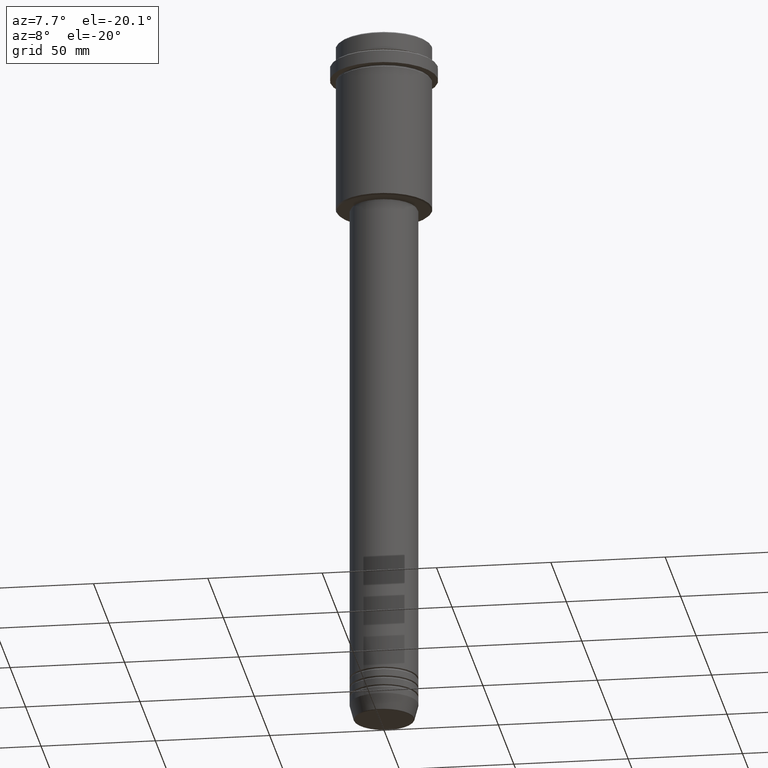
[diagram: clean part render]
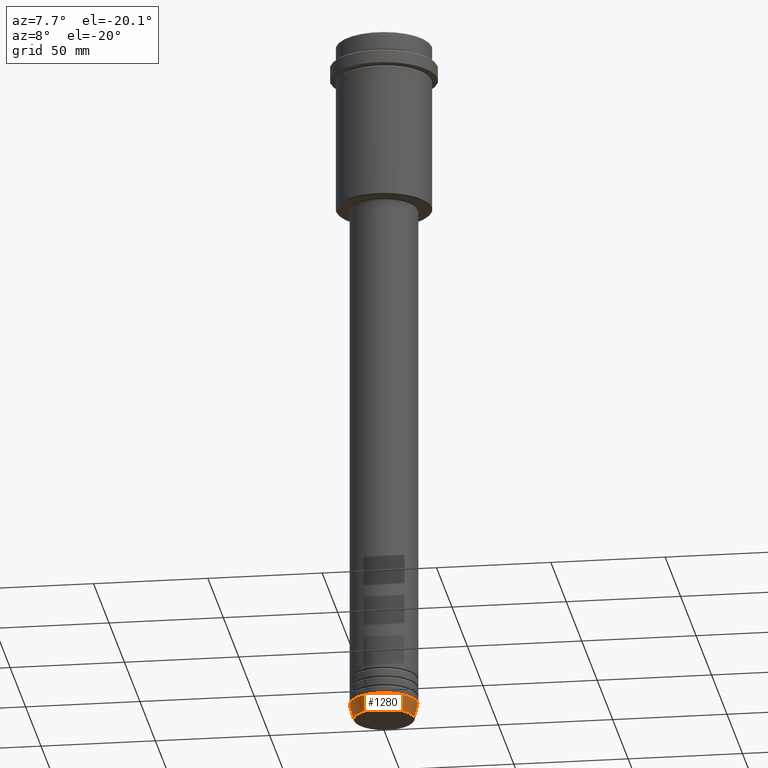
[diagram: same view with one face highlighted and labeled with its STEP entity id]
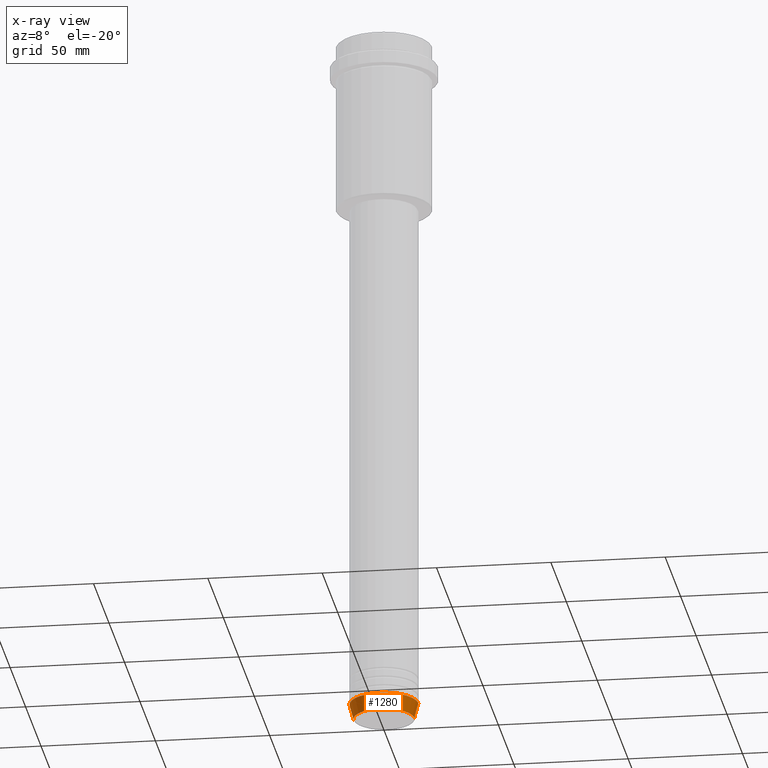
[diagram: x-ray of the same camera — body ghosted, the highlighted face saturated]
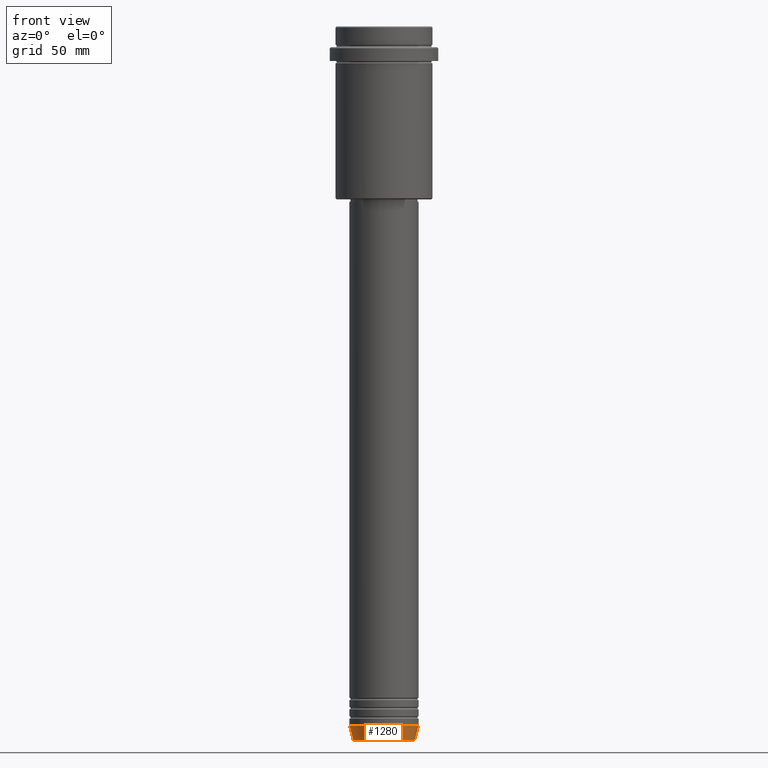
[diagram: same view with one face highlighted and labeled with its STEP entity id]
A machine part, auxiliary view. The second image highlights one B-rep face of the part: STEP entity #1280.
The next image is the same camera in x-ray: the body ghosted, the highlighted face saturated — about 0% of this face is hidden behind the body in this view.
A second angle (front view) of the same face is appended — the face is thin or edge-on in the first view.
In plain terms, the highlighted conical surface has half-angle 15 deg.
Its self-contained STEP definition (entity closure, byte-faithful):
#28 = DIRECTION ( 'NONE',  ( -0.2588190451025213501, 3.169619151431772337E-17, 0.9659258262890680902 ) ) ;
#48 = VERTEX_POINT ( 'NONE', #1174 ) ;
#126 = CIRCLE ( 'NONE', #1339, 13.22365507213718772 ) ;
#132 = CARTESIAN_POINT ( 'NONE',  ( -13.22365507213718772, 1.728200442216588386E-15, -309.6294095225513274 ) ) ;
#147 = CARTESIAN_POINT ( 'NONE',  ( 0.000000000000000000, 0.000000000000000000, -303.0000000000000000 ) ) ;
#229 = ORIENTED_EDGE ( 'NONE', *, *, #571, .T. ) ;
#318 = LINE ( 'NONE', #637, #1208 ) ;
#336 = VERTEX_POINT ( 'NONE', #132 ) ;
#382 = EDGE_CURVE ( 'NONE', #773, #1082, #608, .T. ) ;
#512 = CARTESIAN_POINT ( 'NONE',  ( 0.000000000000000000, 0.000000000000000000, -303.0000000000000000 ) ) ;
#554 = EDGE_LOOP ( 'NONE', ( #560, #1177, #229, #1163 ) ) ;
#560 = ORIENTED_EDGE ( 'NONE', *, *, #1415, .F. ) ;
#571 = EDGE_CURVE ( 'NONE', #48, #1082, #318, .T. ) ;
#597 = EDGE_CURVE ( 'NONE', #336, #48, #126, .T. ) ;
#608 = CIRCLE ( 'NONE', #1315, 15.00000000000000000 ) ;
#622 = FACE_OUTER_BOUND ( 'NONE', #554, .T. ) ;
#637 = CARTESIAN_POINT ( 'NONE',  ( 15.00000000000000000, 0.000000000000000000, -303.0000000000000000 ) ) ;
#684 = CONICAL_SURFACE ( 'NONE', #992, 15.00000000000000000, 0.2617993877991500740 ) ;
#726 = DIRECTION ( 'NONE',  ( -0.000000000000000000, -0.000000000000000000, 1.000000000000000000 ) ) ;
#735 = DIRECTION ( 'NONE',  ( 1.000000000000000000, 0.000000000000000000, 0.000000000000000000 ) ) ;
#765 = DIRECTION ( 'NONE',  ( 0.2588190451025213501, 0.000000000000000000, 0.9659258262890680902 ) ) ;
#773 = VERTEX_POINT ( 'NONE', #1107 ) ;
#785 = CARTESIAN_POINT ( 'NONE',  ( -15.00000000000000000, 1.836970198721029589E-15, -303.0000000000000000 ) ) ;
#927 = DIRECTION ( 'NONE',  ( 1.000000000000000000, 0.000000000000000000, 0.000000000000000000 ) ) ;
#941 = DIRECTION ( 'NONE',  ( -0.000000000000000000, -0.000000000000000000, 1.000000000000000000 ) ) ;
#992 = AXIS2_PLACEMENT_3D ( 'NONE', #512, #941, #735 ) ;
#1013 = VECTOR ( 'NONE', #28, 1000.000000000000000 ) ;
#1018 = CARTESIAN_POINT ( 'NONE',  ( 15.00000000000000000, 0.000000000000000000, -303.0000000000000000 ) ) ;
#1082 = VERTEX_POINT ( 'NONE', #1018 ) ;
#1089 = DIRECTION ( 'NONE',  ( -0.000000000000000000, -0.000000000000000000, 1.000000000000000000 ) ) ;
#1107 = CARTESIAN_POINT ( 'NONE',  ( -15.00000000000000000, 1.836970198721029589E-15, -303.0000000000000000 ) ) ;
#1163 = ORIENTED_EDGE ( 'NONE', *, *, #382, .F. ) ;
#1174 = CARTESIAN_POINT ( 'NONE',  ( 13.22365507213718772, 0.000000000000000000, -309.6294095225513274 ) ) ;
#1177 = ORIENTED_EDGE ( 'NONE', *, *, #597, .T. ) ;
#1208 = VECTOR ( 'NONE', #765, 1000.000000000000000 ) ;
#1225 = DIRECTION ( 'NONE',  ( 1.000000000000000000, 0.000000000000000000, 0.000000000000000000 ) ) ;
#1280 = ADVANCED_FACE ( 'NONE', ( #622 ), #684, .T. ) ;
#1315 = AXIS2_PLACEMENT_3D ( 'NONE', #147, #726, #927 ) ;
#1330 = LINE ( 'NONE', #785, #1013 ) ;
#1339 = AXIS2_PLACEMENT_3D ( 'NONE', #1342, #1089, #1225 ) ;
#1342 = CARTESIAN_POINT ( 'NONE',  ( 0.000000000000000000, 0.000000000000000000, -309.6294095225513274 ) ) ;
#1415 = EDGE_CURVE ( 'NONE', #336, #773, #1330, .T. ) ;